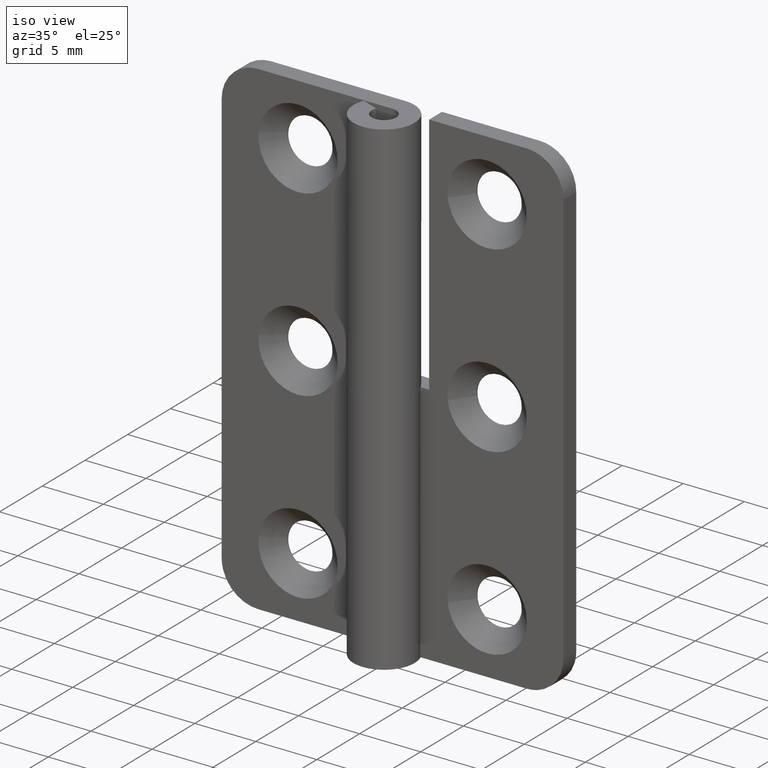
[diagram: clean part render]
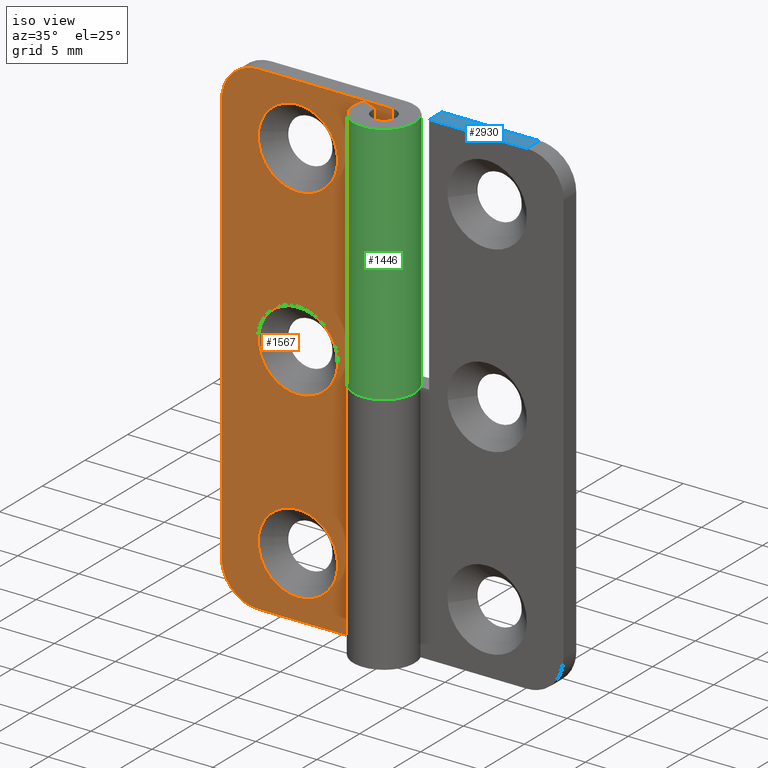
[diagram: same view with three faces highlighted in distinct colors, each labeled with its STEP entity id]
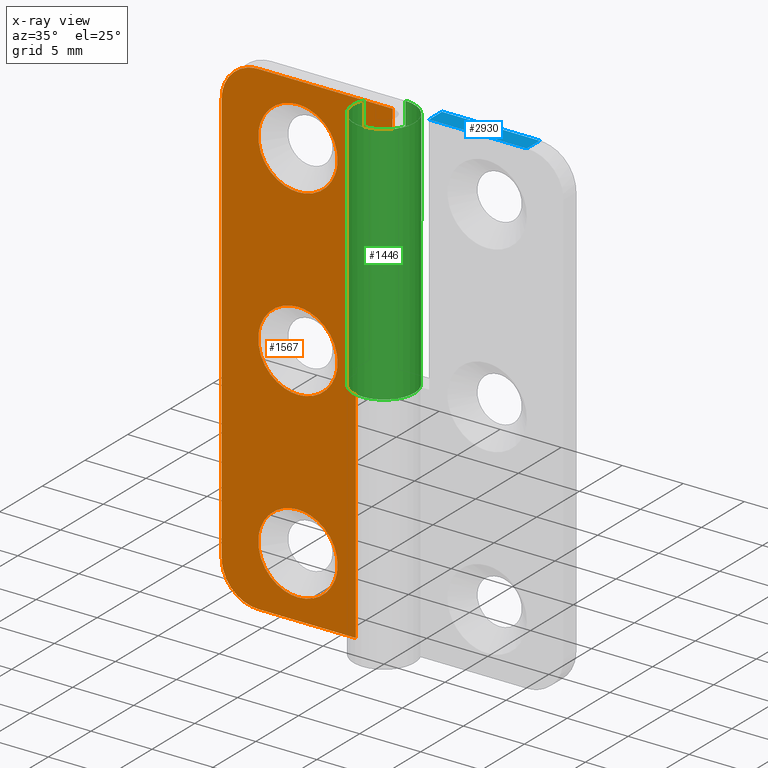
[diagram: x-ray of the same camera — body ghosted, the three highlighted faces saturated]
A machine part, iso view with three faces highlighted in distinct colors.
The next image is the same camera in x-ray (body ghosted, the three faces saturated) — at least one of them is partly hidden behind the body in this view.
Their STEP definitions:

[orange] entity #1567 — the highlighted face is a freeform B-spline surface patch.
#283=CARTESIAN_POINT('',(-10.977280960683339,0.999999999979498,35.383603262796044));
#284=VERTEX_POINT('',#283);
#290=CARTESIAN_POINT('',(-7.750000000000000,1.0,31.749991999999889));
#291=VERTEX_POINT('',#290);
#292=CARTESIAN_POINT('',(-10.977280960683341,0.999999999979498,35.383603262796044));
#293=CARTESIAN_POINT('',(-11.000000000000005,1.0,35.192470389029552));
#294=CARTESIAN_POINT('',(-11.0,1.0,34.999991999999899));
#295=CARTESIAN_POINT('',(-11.0,1.0,31.749991999999899));
#296=CARTESIAN_POINT('',(-7.750000000000000,1.0,31.749991999999889));
#304=(BOUNDED_CURVE()B_SPLINE_CURVE(2,(#292,#293,#294,#295,#296),.UNSPECIFIED.,.F.,.U.)B_SPLINE_CURVE_WITH_KNOTS((3,2,3),(0.229562473498965,0.250000000000000,0.500000000000000),.UNSPECIFIED.)CURVE()GEOMETRIC_REPRESENTATION_ITEM()RATIONAL_B_SPLINE_CURVE((0.956026754155193,0.976055948314106,1.0,0.707106781186547,1.0))REPRESENTATION_ITEM(''));
#305=EDGE_CURVE('',#284,#291,#304,.T.);
#307=CARTESIAN_POINT('',(-4.506061905112269,0.999999999968991,34.801584246276143));
#308=VERTEX_POINT('',#307);
#309=CARTESIAN_POINT('',(-7.750000000000000,1.0,31.749991999999889));
#310=CARTESIAN_POINT('',(-4.692705282997627,1.0,31.749991999999899));
#311=CARTESIAN_POINT('',(-4.506061905112269,0.999999999968991,34.801584246276143));
#319=(BOUNDED_CURVE()B_SPLINE_CURVE(2,(#309,#310,#311),.UNSPECIFIED.,.F.,.U.)B_SPLINE_CURVE_WITH_KNOTS((3,3),(0.500000000000000,0.739332962217118),.UNSPECIFIED.)CURVE()GEOMETRIC_REPRESENTATION_ITEM()RATIONAL_B_SPLINE_CURVE((1.0,0.719603993312279,0.976072041619943))REPRESENTATION_ITEM(''));
#320=EDGE_CURVE('',#291,#308,#319,.T.);
#354=CARTESIAN_POINT('',(-7.750000000000000,1.0,38.249991999999899));
#355=VERTEX_POINT('',#354);
#356=CARTESIAN_POINT('',(-4.506061905112269,0.999999999968991,34.801584246276136));
#357=CARTESIAN_POINT('',(-4.500000000000001,1.0,34.900695519045236));
#358=CARTESIAN_POINT('',(-4.500000000000001,1.0,34.999991999999899));
#359=CARTESIAN_POINT('',(-4.500000000000000,1.0,38.249991999999899));
#360=CARTESIAN_POINT('',(-7.750000000000000,1.0,38.249991999999899));
#368=(BOUNDED_CURVE()B_SPLINE_CURVE(2,(#356,#357,#358,#359,#360),.UNSPECIFIED.,.F.,.U.)B_SPLINE_CURVE_WITH_KNOTS((3,2,3),(0.739332962217119,0.750000000000000,1.0),.UNSPECIFIED.)CURVE()GEOMETRIC_REPRESENTATION_ITEM()RATIONAL_B_SPLINE_CURVE((0.976072041619945,0.987502787874269,1.0,0.707106781186547,1.0))REPRESENTATION_ITEM(''));
#369=EDGE_CURVE('',#308,#355,#368,.T.);
#371=CARTESIAN_POINT('',(-7.750000000000000,1.0,38.249991999999899));
#372=CARTESIAN_POINT('',(-10.636567209055046,1.0,38.249991999999907));
#373=CARTESIAN_POINT('',(-10.977280960683343,0.999999999979498,35.383603262796036));
#381=(BOUNDED_CURVE()B_SPLINE_CURVE(2,(#371,#372,#373),.UNSPECIFIED.,.F.,.U.)B_SPLINE_CURVE_WITH_KNOTS((3,3),(0.0,0.229562473498964),.UNSPECIFIED.)CURVE()GEOMETRIC_REPRESENTATION_ITEM()RATIONAL_B_SPLINE_CURVE((1.0,0.731050832872442,0.956026754155193))REPRESENTATION_ITEM(''));
#382=EDGE_CURVE('',#355,#284,#381,.T.);
#627=CARTESIAN_POINT('',(-10.977280960683339,0.999999999979498,20.383611262796151));
#628=VERTEX_POINT('',#627);
#634=CARTESIAN_POINT('',(-7.750000000000000,1.0,16.750000000000000));
#635=VERTEX_POINT('',#634);
#636=CARTESIAN_POINT('',(-10.977280960683338,0.999999999979498,20.383611262796151));
#637=CARTESIAN_POINT('',(-10.999999999999995,1.0,20.192478389029656));
#638=CARTESIAN_POINT('',(-11.0,1.0,20.0));
#639=CARTESIAN_POINT('',(-11.0,1.0,16.750000000000000));
#640=CARTESIAN_POINT('',(-7.750000000000000,1.0,16.750000000000000));
#648=(BOUNDED_CURVE()B_SPLINE_CURVE(2,(#636,#637,#638,#639,#640),.UNSPECIFIED.,.F.,.U.)B_SPLINE_CURVE_WITH_KNOTS((3,2,3),(0.229562473498964,0.250000000000000,0.500000000000000),.UNSPECIFIED.)CURVE()GEOMETRIC_REPRESENTATION_ITEM()RATIONAL_B_SPLINE_CURVE((0.956026754155191,0.976055948314105,1.0,0.707106781186547,1.0))REPRESENTATION_ITEM(''));
#649=EDGE_CURVE('',#628,#635,#648,.T.);
#651=CARTESIAN_POINT('',(-4.506061905112270,0.999999999968991,19.801592246276229));
#652=VERTEX_POINT('',#651);
#653=CARTESIAN_POINT('',(-7.750000000000000,1.0,16.750000000000000));
#654=CARTESIAN_POINT('',(-4.692705282997627,1.0,16.750000000000000));
#655=CARTESIAN_POINT('',(-4.506061905112270,0.999999999968991,19.801592246276225));
#663=(BOUNDED_CURVE()B_SPLINE_CURVE(2,(#653,#654,#655),.UNSPECIFIED.,.F.,.U.)B_SPLINE_CURVE_WITH_KNOTS((3,3),(0.500000000000000,0.739332962217118),.UNSPECIFIED.)CURVE()GEOMETRIC_REPRESENTATION_ITEM()RATIONAL_B_SPLINE_CURVE((1.0,0.719603993312279,0.976072041619943))REPRESENTATION_ITEM(''));
#664=EDGE_CURVE('',#635,#652,#663,.T.);
#698=CARTESIAN_POINT('',(-7.750000000000000,1.0,23.250000000000000));
#699=VERTEX_POINT('',#698);
#700=CARTESIAN_POINT('',(-4.506061905112270,0.999999999968991,19.801592246276233));
#701=CARTESIAN_POINT('',(-4.500000000000002,1.0,19.900703519045344));
#702=CARTESIAN_POINT('',(-4.500000000000001,1.0,20.0));
#703=CARTESIAN_POINT('',(-4.500000000000000,1.0,23.250000000000004));
#704=CARTESIAN_POINT('',(-7.750000000000000,1.0,23.250000000000000));
#712=(BOUNDED_CURVE()B_SPLINE_CURVE(2,(#700,#701,#702,#703,#704),.UNSPECIFIED.,.F.,.U.)B_SPLINE_CURVE_WITH_KNOTS((3,2,3),(0.739332962217118,0.750000000000000,1.0),.UNSPECIFIED.)CURVE()GEOMETRIC_REPRESENTATION_ITEM()RATIONAL_B_SPLINE_CURVE((0.976072041619944,0.987502787874268,1.0,0.707106781186547,1.0))REPRESENTATION_ITEM(''));
#713=EDGE_CURVE('',#652,#699,#712,.T.);
#715=CARTESIAN_POINT('',(-7.750000000000000,1.0,23.250000000000000));
#716=CARTESIAN_POINT('',(-10.636567209055038,1.0,23.250000000000004));
#717=CARTESIAN_POINT('',(-10.977280960683347,0.999999999979498,20.383611262796158));
#725=(BOUNDED_CURVE()B_SPLINE_CURVE(2,(#715,#716,#717),.UNSPECIFIED.,.F.,.U.)B_SPLINE_CURVE_WITH_KNOTS((3,3),(0.0,0.229562473498964),.UNSPECIFIED.)CURVE()GEOMETRIC_REPRESENTATION_ITEM()RATIONAL_B_SPLINE_CURVE((1.0,0.731050832872442,0.956026754155191))REPRESENTATION_ITEM(''));
#726=EDGE_CURVE('',#699,#628,#725,.T.);
#971=CARTESIAN_POINT('',(-10.977280960683339,0.999999999979497,5.383611262796149));
#972=VERTEX_POINT('',#971);
#978=CARTESIAN_POINT('',(-7.750000000000000,1.0,1.750000000000000));
#979=VERTEX_POINT('',#978);
#980=CARTESIAN_POINT('',(-10.977280960683347,0.999999999979497,5.383611262796150));
#981=CARTESIAN_POINT('',(-11.000000000000005,1.0,5.192478389029657));
#982=CARTESIAN_POINT('',(-11.0,1.0,5.0));
#983=CARTESIAN_POINT('',(-11.0,1.0,1.750000000000000));
#984=CARTESIAN_POINT('',(-7.750000000000000,1.0,1.750000000000000));
#992=(BOUNDED_CURVE()B_SPLINE_CURVE(2,(#980,#981,#982,#983,#984),.UNSPECIFIED.,.F.,.U.)B_SPLINE_CURVE_WITH_KNOTS((3,2,3),(0.229562473498964,0.250000000000000,0.500000000000000),.UNSPECIFIED.)CURVE()GEOMETRIC_REPRESENTATION_ITEM()RATIONAL_B_SPLINE_CURVE((0.956026754155191,0.976055948314105,1.0,0.707106781186547,1.0))REPRESENTATION_ITEM(''));
#993=EDGE_CURVE('',#972,#979,#992,.T.);
#995=CARTESIAN_POINT('',(-4.506061905112270,0.999999999968991,4.801592246276228));
#996=VERTEX_POINT('',#995);
#997=CARTESIAN_POINT('',(-7.750000000000000,1.0,1.750000000000000));
#998=CARTESIAN_POINT('',(-4.692705282997627,1.0,1.750000000000000));
#999=CARTESIAN_POINT('',(-4.506061905112270,0.999999999968991,4.801592246276228));
#1007=(BOUNDED_CURVE()B_SPLINE_CURVE(2,(#997,#998,#999),.UNSPECIFIED.,.F.,.U.)B_SPLINE_CURVE_WITH_KNOTS((3,3),(0.500000000000000,0.739332962217118),.UNSPECIFIED.)CURVE()GEOMETRIC_REPRESENTATION_ITEM()RATIONAL_B_SPLINE_CURVE((1.0,0.719603993312279,0.976072041619943))REPRESENTATION_ITEM(''));
#1008=EDGE_CURVE('',#979,#996,#1007,.T.);
#1042=CARTESIAN_POINT('',(-7.750000000000000,1.0,8.250000000000000));
#1043=VERTEX_POINT('',#1042);
#1044=CARTESIAN_POINT('',(-4.506061905112270,0.999999999968991,4.801592246276228));
#1045=CARTESIAN_POINT('',(-4.500000000000000,1.0,4.900703519045337));
#1046=CARTESIAN_POINT('',(-4.500000000000001,1.0,5.0));
#1047=CARTESIAN_POINT('',(-4.500000000000000,1.0,8.250000000000000));
#1048=CARTESIAN_POINT('',(-7.750000000000000,1.0,8.250000000000000));
#1056=(BOUNDED_CURVE()B_SPLINE_CURVE(2,(#1044,#1045,#1046,#1047,#1048),.UNSPECIFIED.,.F.,.U.)B_SPLINE_CURVE_WITH_KNOTS((3,2,3),(0.739332962217118,0.750000000000000,1.0),.UNSPECIFIED.)CURVE()GEOMETRIC_REPRESENTATION_ITEM()RATIONAL_B_SPLINE_CURVE((0.976072041619944,0.987502787874268,1.0,0.707106781186547,1.0))REPRESENTATION_ITEM(''));
#1057=EDGE_CURVE('',#996,#1043,#1056,.T.);
#1059=CARTESIAN_POINT('',(-7.750000000000000,1.0,8.250000000000000));
#1060=CARTESIAN_POINT('',(-10.636567209055038,1.0,8.250000000000000));
#1061=CARTESIAN_POINT('',(-10.977280960683347,0.999999999979497,5.383611262796150));
#1069=(BOUNDED_CURVE()B_SPLINE_CURVE(2,(#1059,#1060,#1061),.UNSPECIFIED.,.F.,.U.)B_SPLINE_CURVE_WITH_KNOTS((3,3),(0.0,0.229562473498964),.UNSPECIFIED.)CURVE()GEOMETRIC_REPRESENTATION_ITEM()RATIONAL_B_SPLINE_CURVE((1.0,0.731050832872442,0.956026754155191))REPRESENTATION_ITEM(''));
#1070=EDGE_CURVE('',#1043,#972,#1069,.T.);
#1081=CARTESIAN_POINT('',(-3.0,1.0,0.0));
#1082=VERTEX_POINT('',#1081);
#1083=CARTESIAN_POINT('',(-3.0,1.0,20.0));
#1084=VERTEX_POINT('',#1083);
#1085=CARTESIAN_POINT('',(-3.0,1.0,0.0));
#1086=CARTESIAN_POINT('',(-3.0,1.0,20.0));
#1087=QUASI_UNIFORM_CURVE('',1,(#1085,#1086),.UNSPECIFIED.,.F.,.U.);
#1088=EDGE_CURVE('',#1082,#1084,#1087,.T.);
#1117=CARTESIAN_POINT('',(0.0,1.0,20.0));
#1118=VERTEX_POINT('',#1117);
#1119=CARTESIAN_POINT('',(-3.0,1.0,20.0));
#1120=CARTESIAN_POINT('',(0.0,1.0,20.0));
#1121=QUASI_UNIFORM_CURVE('',1,(#1119,#1120),.UNSPECIFIED.,.F.,.U.);
#1122=EDGE_CURVE('',#1084,#1118,#1121,.T.);
#1196=CARTESIAN_POINT('',(-14.0,1.0,36.999991999999963));
#1197=VERTEX_POINT('',#1196);
#1198=CARTESIAN_POINT('',(-11.0,1.0,39.999991999999949));
#1199=VERTEX_POINT('',#1198);
#1200=CARTESIAN_POINT('',(-14.0,1.0,36.999991999999899));
#1201=CARTESIAN_POINT('',(-13.999999999999998,1.0,39.999991999999892));
#1202=CARTESIAN_POINT('',(-11.0,1.0,39.999991999999899));
#1210=(BOUNDED_CURVE()B_SPLINE_CURVE(2,(#1200,#1201,#1202),.UNSPECIFIED.,.F.,.U.)CURVE()GEOMETRIC_REPRESENTATION_ITEM()QUASI_UNIFORM_CURVE()RATIONAL_B_SPLINE_CURVE((1.0,0.707106781186548,1.0))REPRESENTATION_ITEM(''));
#1211=EDGE_CURVE('',#1197,#1199,#1210,.T.);
#1257=CARTESIAN_POINT('',(-11.0,1.0,0.0));
#1258=VERTEX_POINT('',#1257);
#1259=CARTESIAN_POINT('',(-14.0,1.0,3.0));
#1260=VERTEX_POINT('',#1259);
#1261=CARTESIAN_POINT('',(-11.0,1.0,0.0));
#1262=CARTESIAN_POINT('',(-13.999999999999998,1.0,0.0));
#1263=CARTESIAN_POINT('',(-14.0,1.0,3.0));
#1271=(BOUNDED_CURVE()B_SPLINE_CURVE(2,(#1261,#1262,#1263),.UNSPECIFIED.,.F.,.U.)CURVE()GEOMETRIC_REPRESENTATION_ITEM()QUASI_UNIFORM_CURVE()RATIONAL_B_SPLINE_CURVE((1.0,0.707106781186548,1.0))REPRESENTATION_ITEM(''));
#1272=EDGE_CURVE('',#1258,#1260,#1271,.T.);
#1309=CARTESIAN_POINT('',(0.0,1.0,39.999991999999949));
#1310=VERTEX_POINT('',#1309);
#1311=CARTESIAN_POINT('',(0.0,1.0,39.999991999999949));
#1312=CARTESIAN_POINT('',(-11.0,1.0,39.999991999999949));
#1313=QUASI_UNIFORM_CURVE('',1,(#1311,#1312),.UNSPECIFIED.,.F.,.U.);
#1314=EDGE_CURVE('',#1310,#1199,#1313,.T.);
#1380=CARTESIAN_POINT('',(-3.0,1.0,0.0));
#1381=CARTESIAN_POINT('',(-11.0,1.0,0.0));
#1382=QUASI_UNIFORM_CURVE('',1,(#1380,#1381),.UNSPECIFIED.,.F.,.U.);
#1383=EDGE_CURVE('',#1082,#1258,#1382,.T.);
#1452=CARTESIAN_POINT('',(-14.0,1.0,3.0));
#1453=CARTESIAN_POINT('',(-14.0,1.0,36.999991999999963));
#1454=QUASI_UNIFORM_CURVE('',1,(#1452,#1453),.UNSPECIFIED.,.F.,.U.);
#1455=EDGE_CURVE('',#1260,#1197,#1454,.T.);
#1492=CARTESIAN_POINT('',(0.0,1.0,20.0));
#1493=CARTESIAN_POINT('',(0.0,1.0,39.999991999999949));
#1494=QUASI_UNIFORM_CURVE('',1,(#1492,#1493),.UNSPECIFIED.,.F.,.U.);
#1495=EDGE_CURVE('',#1118,#1310,#1494,.T.);
#1534=CARTESIAN_POINT('',(-14.699299972865290,1.0,41.997991898363523));
#1535=CARTESIAN_POINT('',(-14.699299972865290,1.0,-1.998000613619154));
#1536=CARTESIAN_POINT('',(0.699300348374544,1.0,41.997991898363523));
#1537=CARTESIAN_POINT('',(0.699300348374544,1.0,-1.998000613619154));
#1538=B_SPLINE_SURFACE_WITH_KNOTS('',1,1,((#1534,#1536),(#1535,#1537)),.UNSPECIFIED.,.F.,.F.,.U.,(2,2),(2,2),(0.0,43.995992511982671),(0.0,15.398600321239829),.UNSPECIFIED.);
#1539=ORIENTED_EDGE('',*,*,#1122,.T.);
#1540=ORIENTED_EDGE('',*,*,#1495,.T.);
#1541=ORIENTED_EDGE('',*,*,#1314,.T.);
#1542=ORIENTED_EDGE('',*,*,#1211,.F.);
#1543=ORIENTED_EDGE('',*,*,#1455,.F.);
#1544=ORIENTED_EDGE('',*,*,#1272,.F.);
#1545=ORIENTED_EDGE('',*,*,#1383,.F.);
#1546=ORIENTED_EDGE('',*,*,#1088,.T.);
#1547=EDGE_LOOP('',(#1539,#1540,#1541,#1542,#1543,#1544,#1545,#1546));
#1548=FACE_OUTER_BOUND('',#1547,.T.);
#1549=ORIENTED_EDGE('',*,*,#1008,.F.);
#1550=ORIENTED_EDGE('',*,*,#993,.F.);
#1551=ORIENTED_EDGE('',*,*,#1070,.F.);
#1552=ORIENTED_EDGE('',*,*,#1057,.F.);
#1553=EDGE_LOOP('',(#1549,#1550,#1551,#1552));
#1554=FACE_BOUND('',#1553,.T.);
#1555=ORIENTED_EDGE('',*,*,#664,.F.);
#1556=ORIENTED_EDGE('',*,*,#649,.F.);
#1557=ORIENTED_EDGE('',*,*,#726,.F.);
#1558=ORIENTED_EDGE('',*,*,#713,.F.);
#1559=EDGE_LOOP('',(#1555,#1556,#1557,#1558));
#1560=FACE_BOUND('',#1559,.T.);
#1561=ORIENTED_EDGE('',*,*,#320,.F.);
#1562=ORIENTED_EDGE('',*,*,#305,.F.);
#1563=ORIENTED_EDGE('',*,*,#382,.F.);
#1564=ORIENTED_EDGE('',*,*,#369,.F.);
#1565=EDGE_LOOP('',(#1561,#1562,#1563,#1564));
#1566=FACE_BOUND('',#1565,.T.);
#1567=ADVANCED_FACE('',(#1548,#1554,#1560,#1566),#1538,.T.);

[blue] entity #2930 — the highlighted face is a freeform B-spline surface patch.
#2670=CARTESIAN_POINT('',(11.0,2.500000000000000,39.999991999999892));
#2671=VERTEX_POINT('',#2670);
#2685=CARTESIAN_POINT('',(11.0,1.0,39.999991999999892));
#2686=VERTEX_POINT('',#2685);
#2687=CARTESIAN_POINT('',(11.0,2.500000000000000,39.999991999999892));
#2688=CARTESIAN_POINT('',(11.0,1.0,39.999991999999892));
#2689=QUASI_UNIFORM_CURVE('',1,(#2687,#2688),.UNSPECIFIED.,.F.,.U.);
#2690=EDGE_CURVE('',#2671,#2686,#2689,.T.);
#2798=CARTESIAN_POINT('',(3.0,1.0,39.999991999999892));
#2799=VERTEX_POINT('',#2798);
#2805=CARTESIAN_POINT('',(3.0,2.500000000000000,39.999991999999892));
#2806=VERTEX_POINT('',#2805);
#2807=CARTESIAN_POINT('',(3.0,1.0,39.999991999999892));
#2808=CARTESIAN_POINT('',(3.0,2.500000000000000,39.999991999999892));
#2809=QUASI_UNIFORM_CURVE('',1,(#2807,#2808),.UNSPECIFIED.,.F.,.U.);
#2810=EDGE_CURVE('',#2799,#2806,#2809,.T.);
#2911=CARTESIAN_POINT('',(11.399599984494451,2.574924997092709,39.999991999999892));
#2912=CARTESIAN_POINT('',(2.600399800928831,2.574924997092709,39.999991999999892));
#2913=CARTESIAN_POINT('',(11.399599984494451,0.925074962674156,39.999991999999892));
#2914=CARTESIAN_POINT('',(2.600399800928831,0.925074962674156,39.999991999999892));
#2915=B_SPLINE_SURFACE_WITH_KNOTS('',1,1,((#2911,#2913),(#2912,#2914)),.UNSPECIFIED.,.F.,.F.,.U.,(2,2),(2,2),(0.0,8.799200183565617),(0.041708334948495,0.958291687403247),.UNSPECIFIED.);
#2916=CARTESIAN_POINT('',(3.0,2.500000000000000,39.999991999999892));
#2917=CARTESIAN_POINT('',(11.0,2.500000000000000,39.999991999999892));
#2918=QUASI_UNIFORM_CURVE('',1,(#2916,#2917),.UNSPECIFIED.,.F.,.U.);
#2919=EDGE_CURVE('',#2806,#2671,#2918,.T.);
#2920=ORIENTED_EDGE('',*,*,#2919,.F.);
#2921=ORIENTED_EDGE('',*,*,#2810,.F.);
#2922=CARTESIAN_POINT('',(11.0,1.0,39.999991999999892));
#2923=CARTESIAN_POINT('',(3.0,1.0,39.999991999999892));
#2924=QUASI_UNIFORM_CURVE('',1,(#2922,#2923),.UNSPECIFIED.,.F.,.U.);
#2925=EDGE_CURVE('',#2686,#2799,#2924,.T.);
#2926=ORIENTED_EDGE('',*,*,#2925,.F.);
#2927=ORIENTED_EDGE('',*,*,#2690,.F.);
#2928=EDGE_LOOP('',(#2920,#2921,#2926,#2927));
#2929=FACE_OUTER_BOUND('',#2928,.T.);
#2930=ADVANCED_FACE('',(#2929),#2915,.T.);

[green] entity #1446 — the highlighted face is a freeform B-spline surface patch.
#1125=CARTESIAN_POINT('',(0.0,2.500000000000000,20.0));
#1126=VERTEX_POINT('',#1125);
#1132=CARTESIAN_POINT('',(-2.312466215969435,0.950000000000000,20.0));
#1133=VERTEX_POINT('',#1132);
#1134=CARTESIAN_POINT('',(0.0,2.500000000000000,20.0));
#1135=CARTESIAN_POINT('',(1.852720666004543,2.500000000000000,20.000000000000007));
#1136=CARTESIAN_POINT('',(2.391823563133765,0.727447622058181,20.0));
#1137=CARTESIAN_POINT('',(2.930926460262987,-1.045104755883639,20.000000000000007));
#1138=CARTESIAN_POINT('',(1.391941090707506,-2.076655965729519,20.0));
#1139=CARTESIAN_POINT('',(-0.147044278847976,-3.108207175575398,20.000000000000007));
#1140=CARTESIAN_POINT('',(-1.581772173949569,-1.935974377340479,20.0));
#1141=CARTESIAN_POINT('',(-3.016500069051161,-0.763741579105560,20.000000000000007));
#1142=CARTESIAN_POINT('',(-2.312466215969435,0.950000000000000,20.0));
#1150=(BOUNDED_CURVE()B_SPLINE_CURVE(2,(#1134,#1135,#1136,#1137,#1138,#1139,#1140,#1141,#1142),.UNSPECIFIED.,.F.,.U.)B_SPLINE_CURVE_WITH_KNOTS((3,2,2,2,3),(0.0,0.250000000000000,0.500000000000000,0.750000000000000,1.0),.UNSPECIFIED.)CURVE()GEOMETRIC_REPRESENTATION_ITEM()RATIONAL_B_SPLINE_CURVE((1.0,0.803423626993653,1.0,0.803423626993653,1.0,0.803423626993653,1.0,0.803423626993653,1.0))REPRESENTATION_ITEM(''));
#1151=EDGE_CURVE('',#1126,#1133,#1150,.T.);
#1337=CARTESIAN_POINT('',(-2.312466215969435,0.950000000000000,39.999991999999949));
#1338=VERTEX_POINT('',#1337);
#1344=CARTESIAN_POINT('',(0.0,2.500000000000000,39.999991999999949));
#1345=VERTEX_POINT('',#1344);
#1346=CARTESIAN_POINT('',(-2.312466215969435,0.950000000000001,39.999991999999949));
#1347=CARTESIAN_POINT('',(-3.016500069051162,-0.763741579105558,39.999991999999949));
#1348=CARTESIAN_POINT('',(-1.581772173949569,-1.935974377340478,39.999991999999949));
#1349=CARTESIAN_POINT('',(-0.147044278847976,-3.108207175575398,39.999991999999949));
#1350=CARTESIAN_POINT('',(1.391941090707505,-2.076655965729519,39.999991999999949));
#1351=CARTESIAN_POINT('',(2.930926460262985,-1.045104755883641,39.999991999999949));
#1352=CARTESIAN_POINT('',(2.391823563133766,0.727447622058177,39.999991999999949));
#1353=CARTESIAN_POINT('',(1.852720666004546,2.500000000000000,39.999991999999949));
#1354=CARTESIAN_POINT('',(0.0,2.500000000000000,39.999991999999949));
#1362=(BOUNDED_CURVE()B_SPLINE_CURVE(2,(#1346,#1347,#1348,#1349,#1350,#1351,#1352,#1353,#1354),.UNSPECIFIED.,.F.,.U.)B_SPLINE_CURVE_WITH_KNOTS((3,2,2,2,3),(0.0,0.250000000000000,0.500000000000000,0.750000000000000,1.0),.UNSPECIFIED.)CURVE()GEOMETRIC_REPRESENTATION_ITEM()RATIONAL_B_SPLINE_CURVE((1.0,0.803423626993653,1.0,0.803423626993653,1.0,0.803423626993653,1.0,0.803423626993653,1.0))REPRESENTATION_ITEM(''));
#1363=EDGE_CURVE('',#1338,#1345,#1362,.T.);
#1400=CARTESIAN_POINT('',(-2.312466215969435,0.950000000000000,20.0));
#1401=CARTESIAN_POINT('',(-2.312466215969435,0.950000000000000,39.999991999999949));
#1402=QUASI_UNIFORM_CURVE('',1,(#1400,#1401),.UNSPECIFIED.,.F.,.U.);
#1403=EDGE_CURVE('',#1133,#1338,#1402,.T.);
#1414=CARTESIAN_POINT('',(-0.021816338745933,2.499904807660427,19.500000199999999));
#1415=CARTESIAN_POINT('',(-0.021816338745933,2.499904807660427,40.512491794999953));
#1416=CARTESIAN_POINT('',(2.888013660560513,2.525298509357957,19.500000199999995));
#1417=CARTESIAN_POINT('',(2.888013660560513,2.525298509357957,40.512491794999946));
#1418=CARTESIAN_POINT('',(2.474647603878649,-0.355132702827632,19.500000199999999));
#1419=CARTESIAN_POINT('',(2.474647603878649,-0.355132702827632,40.512491794999953));
#1420=CARTESIAN_POINT('',(2.061281547196784,-3.235563915013220,19.500000199999995));
#1421=CARTESIAN_POINT('',(2.061281547196784,-3.235563915013220,40.512491794999946));
#1422=CARTESIAN_POINT('',(-0.723971734767928,-2.392877959123096,19.500000199999999));
#1423=CARTESIAN_POINT('',(-0.723971734767928,-2.392877959123096,40.512491794999953));
#1424=CARTESIAN_POINT('',(-3.509225016732640,-1.550192003232971,19.500000199999995));
#1425=CARTESIAN_POINT('',(-3.509225016732640,-1.550192003232971,40.512491794999946));
#1426=CARTESIAN_POINT('',(-2.256463210874650,1.076277742020738,19.500000199999999));
#1427=CARTESIAN_POINT('',(-2.256463210874650,1.076277742020738,40.512491794999953));
#1435=(BOUNDED_SURFACE()B_SPLINE_SURFACE(1,2,((#1414,#1416,#1418,#1420,#1422,#1424,#1426),(#1415,#1417,#1419,#1421,#1423,#1425,#1427)),.UNSPECIFIED.,.F.,.F.,.U.)B_SPLINE_SURFACE_WITH_KNOTS((2,2),(3,2,2,3),(0.0,21.012491594999950),(0.0,4.592439460880804,9.184878921761609,13.777318382642409),.UNSPECIFIED.)GEOMETRIC_REPRESENTATION_ITEM()RATIONAL_B_SPLINE_SURFACE(((1.0,0.651657228821455,1.0,0.651657228821455,1.0,0.651657228821455,1.0),(1.0,0.651657228821455,1.0,0.651657228821455,1.0,0.651657228821455,1.0)))REPRESENTATION_ITEM('')SURFACE());
#1436=CARTESIAN_POINT('',(0.0,2.500000000000000,20.0));
#1437=CARTESIAN_POINT('',(0.0,2.500000000000000,39.999991999999949));
#1438=QUASI_UNIFORM_CURVE('',1,(#1436,#1437),.UNSPECIFIED.,.F.,.U.);
#1439=EDGE_CURVE('',#1126,#1345,#1438,.T.);
#1440=ORIENTED_EDGE('',*,*,#1439,.T.);
#1441=ORIENTED_EDGE('',*,*,#1363,.F.);
#1442=ORIENTED_EDGE('',*,*,#1403,.F.);
#1443=ORIENTED_EDGE('',*,*,#1151,.F.);
#1444=EDGE_LOOP('',(#1440,#1441,#1442,#1443));
#1445=FACE_OUTER_BOUND('',#1444,.T.);
#1446=ADVANCED_FACE('',(#1445),#1435,.T.);